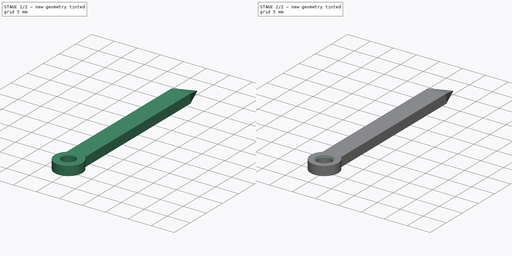
[diagram: build sequence overview — one tinted view per stage of 2, left to right]
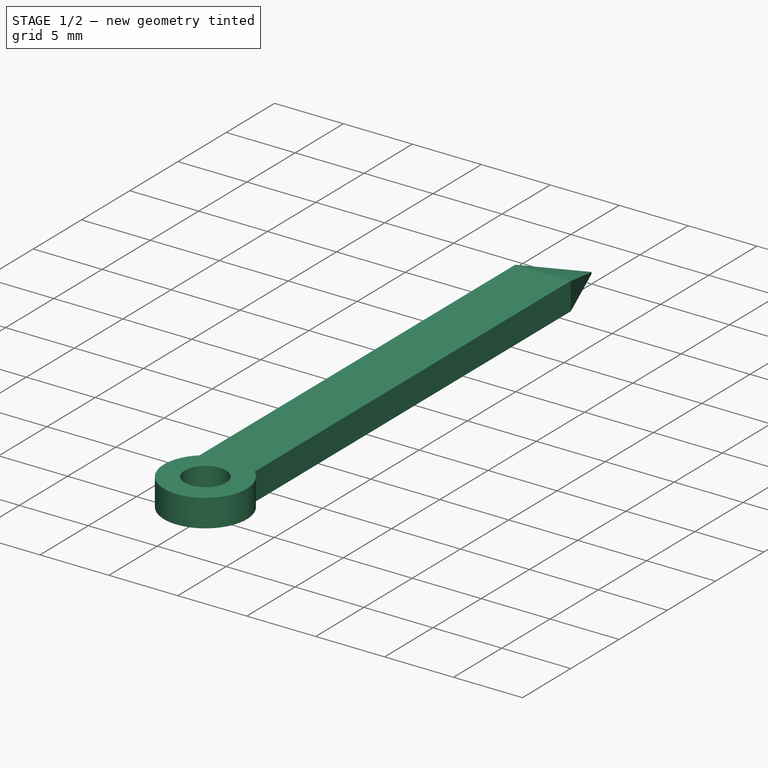
[diagram: stage 1 of 2 — iso view after this stage's code; geometry added in this stage tinted green]
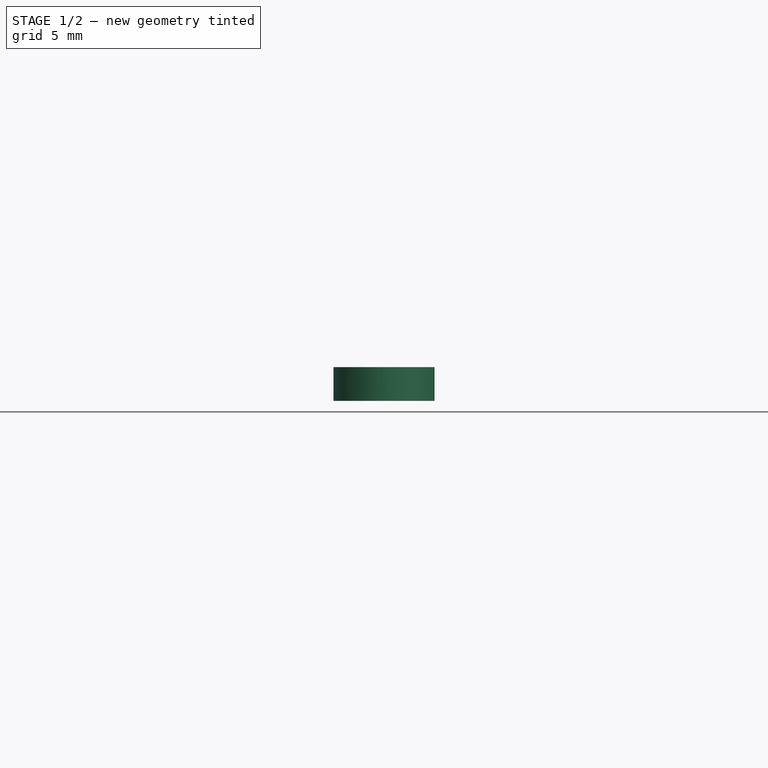
[diagram: stage 1 of 2 — front view after this stage's code; geometry added in this stage tinted green]
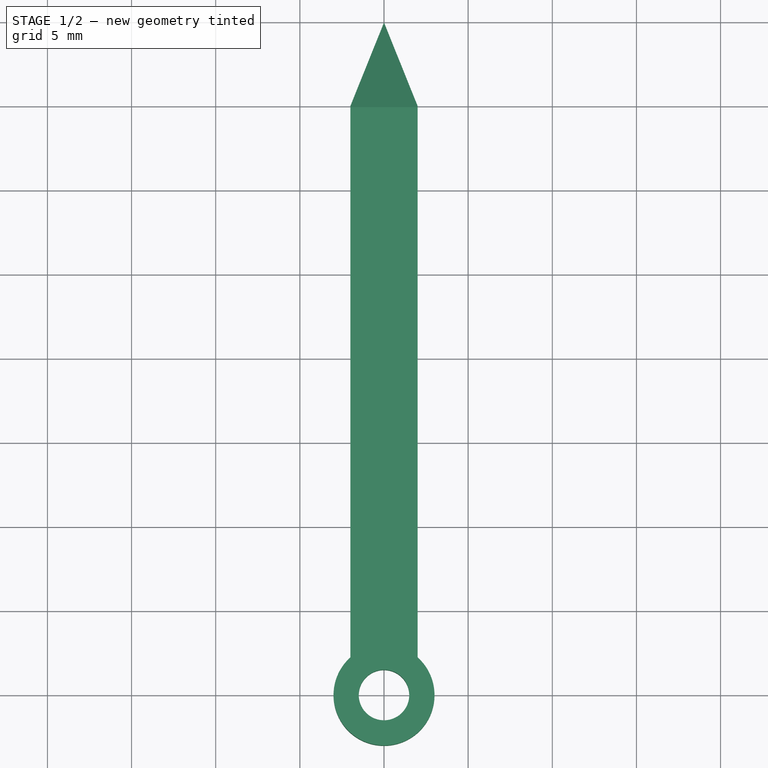
[diagram: stage 1 of 2 — top view after this stage's code; geometry added in this stage tinted green]
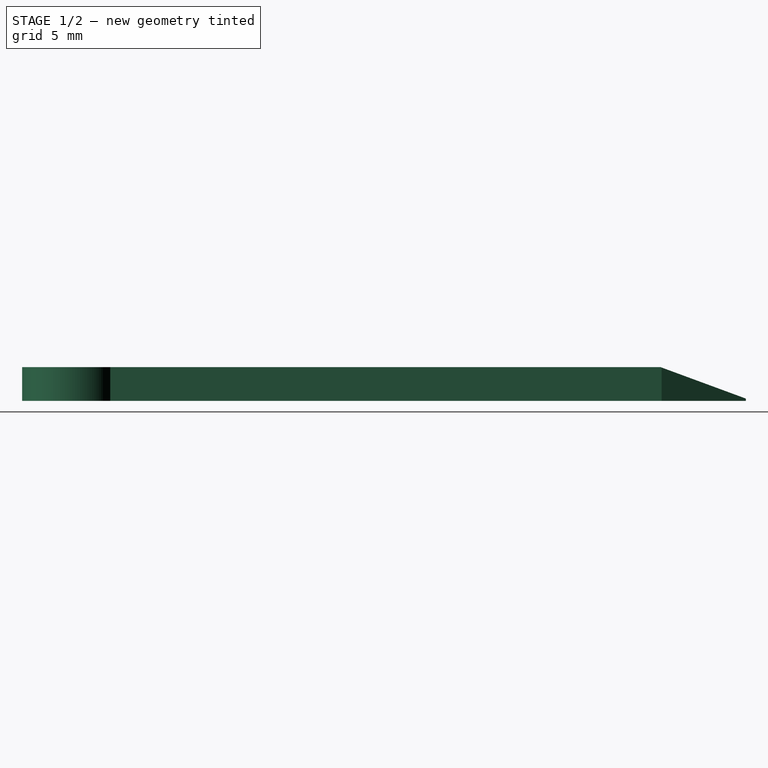
[diagram: stage 1 of 2 — right view after this stage's code; geometry added in this stage tinted green]
FCSTD DOCUMENT  (FreeCAD 0.20R29177 +426 (Git))
Label: needle
License: All rights reserved
LicenseURL: http://en.wikipedia.org/wiki/All_rights_reserved
objects: Sketcher::SketchObject×2, Spreadsheet::Sheet×1, PartDesign::Pad×1, PartDesign::Pocket×1, PartDesign::Fillet×1, PartDesign::Body×1
note: 9 computed .brp shape members not serialized (recipe doc carries the construction recipe); baked Part::Feature solids carry a one-line shape summary decoded from their .brp

FEATURE [Sketcher::SketchObject] Sketch
  FullyConstrained = true
  MapMode = 5
  Support = -> [XY_Plane]
  expr: Constraints[11] = Spreadsheet.length
  expr: Constraints[12] = Spreadsheet.topLen
  expr: Constraints[13] = Spreadsheet.width
  expr: Constraints[1] = Spreadsheet.smallR
  expr: Constraints[2] = Spreadsheet.bottomR
  sketch-geometry (6):
    g0: Circle CenterX=0 CenterY=0 CenterZ=0 NormalX=0 NormalY=0 NormalZ=1 AngleXU=0 Radius=1.5
    g1: ArcOfCircle CenterX=0 CenterY=0 CenterZ=0 NormalX=0 NormalY=0 NormalZ=1 AngleXU=0 Radius=3 StartAngle=2.30052 EndAngle=7.12425
    g2: LineSegment StartX=2 StartY=2.23607 StartZ=0 EndX=2 EndY=35 EndZ=0
    g3: LineSegment StartX=-2 StartY=35 StartZ=0 EndX=-2 EndY=2.23607 EndZ=0
    g4: LineSegment StartX=0 StartY=40 StartZ=0 EndX=-2 EndY=35 EndZ=0
    g5: LineSegment StartX=0 StartY=40 StartZ=0 EndX=2 EndY=35 EndZ=0
  constraints (16):
    c: Coincident(g0,g-1)
    c: Radius(g0) = 1.5
    c: Radius(g1) = 3
    c: Vertical(g2)
    c: Vertical(g3)
    c: Coincident(g1,g2)
    c: Coincident(g1,g3)
    c: Coincident(g5,g4)
    c: Coincident(g3,g4)
    c: Coincident(g2,g5)
    c: PointOnObject(g4,g-2)
    c: DistanceY(g0,g4) = 40
    c: DistanceY(g2,g4) = 5
    c: DistanceX(g3,g2) = 4
    c: Symmetric(g2,g3,g-2)
    c: Coincident(g1,g0)
FEATURE [Spreadsheet::Sheet] Spreadsheet
  cells = A2=smallR; B2(smallR)=1.5; A3=bottomR; B3(bottomR)=3; A4=length; B4(length)=40; A5=width; B5(width)=4; A6=topLen; B6(topLen)=5
FEATURE [PartDesign::Pad] Pad
  Direction = (0,0,1)
  Length = 2
  Length2 = 10
  Profile = -> Sketch
  ReferenceAxis = -> Sketch [N_Axis]
  Type = 0
FEATURE [Sketcher::SketchObject] Sketch001
  FullyConstrained = false
  MapMode = 5
  Placement = pos=(0,0,0) rot=(0.57735,0.57735,0.57735;2.0944rad)
  Support = -> [YZ_Plane]
  sketch-geometry (3):
    g0: LineSegment StartX=40.3648 StartY=0 StartZ=0 EndX=32.1756 EndY=3.01966 EndZ=0
    g1: LineSegment StartX=32.1756 StartY=3.01966 StartZ=0 EndX=42.4468 EndY=4.15318 EndZ=0
    g2: LineSegment StartX=42.4468 StartY=4.15318 StartZ=0 EndX=40.3648 EndY=0 EndZ=0
  constraints (4):
    c: PointOnObject(g0,g-1)
    c: Coincident(g1,g0)
    c: Coincident(g2,g1)
    c: Coincident(g2,g0)
FEATURE [PartDesign::Pocket] Pocket
  BaseFeature = -> Pad
  Direction = (-1,2e-16,-3e-16)
  Length = 5
  Length2 = 5
  Midplane = true
  Profile = -> Sketch001
  ReferenceAxis = -> Sketch001 [N_Axis]
  Type = 0
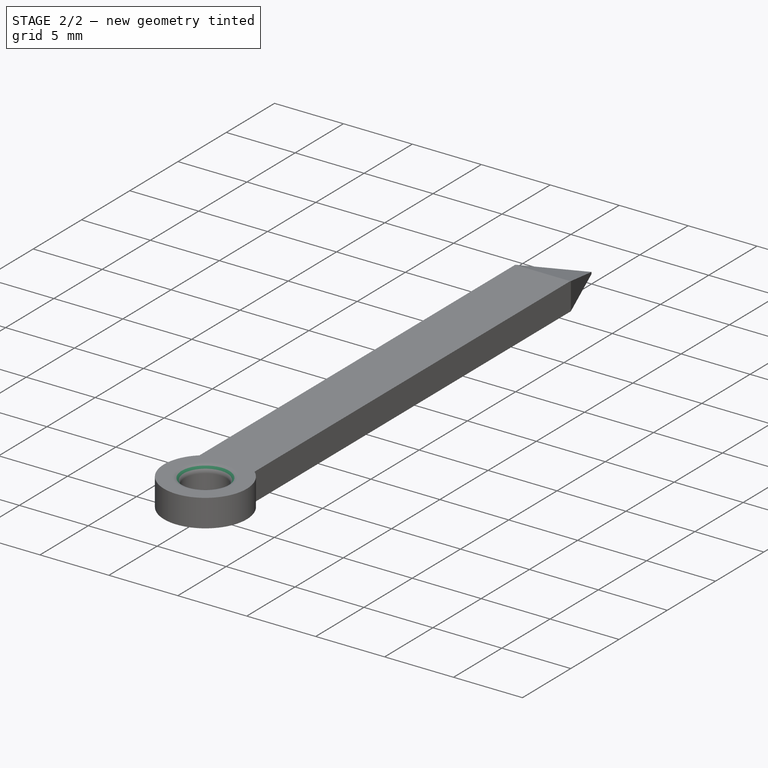
[diagram: stage 2 of 2 — iso view after this stage's code; geometry added in this stage tinted green]
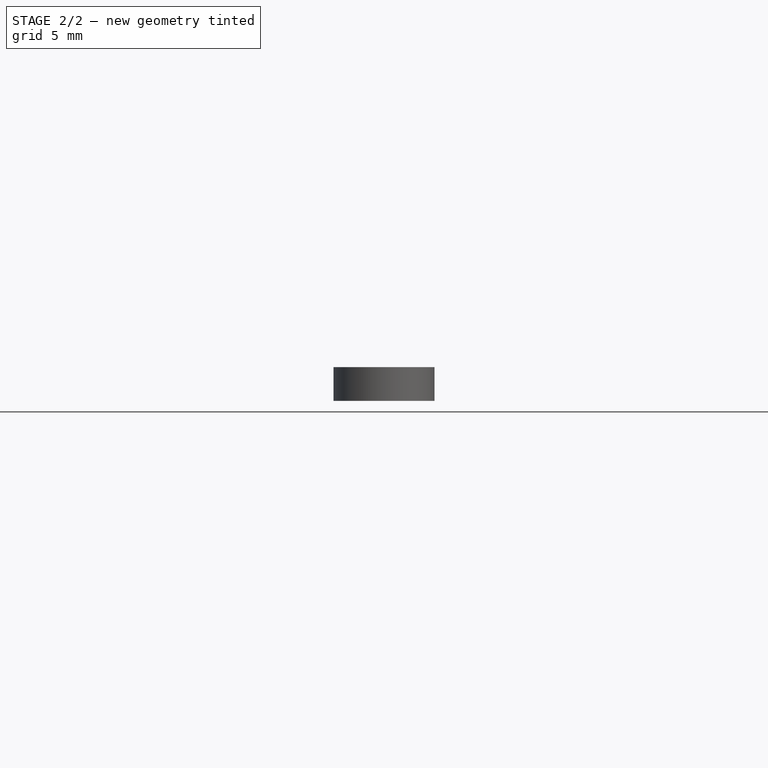
[diagram: stage 2 of 2 — front view after this stage's code; geometry added in this stage tinted green]
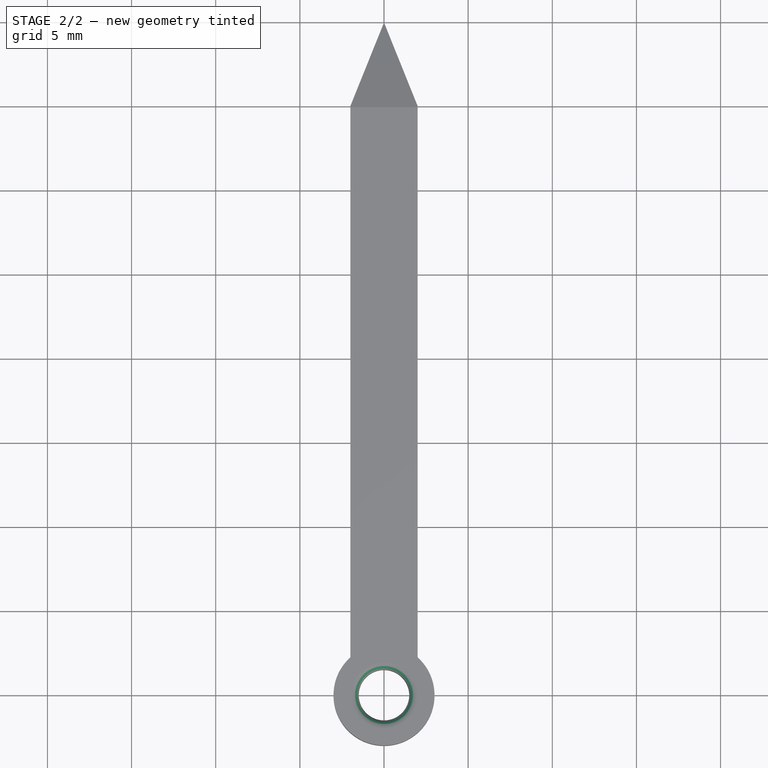
[diagram: stage 2 of 2 — top view after this stage's code; geometry added in this stage tinted green]
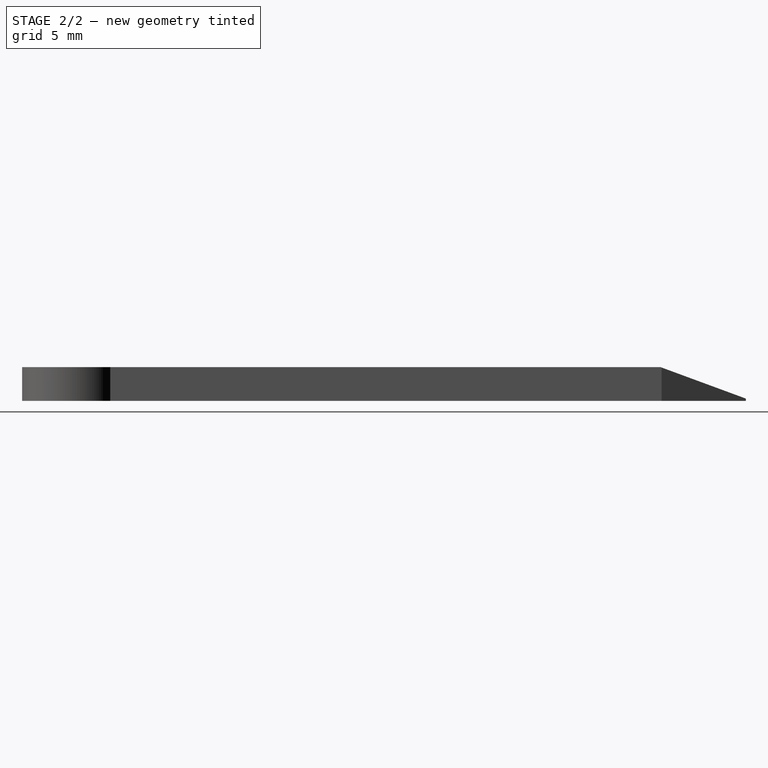
[diagram: stage 2 of 2 — right view after this stage's code; geometry added in this stage tinted green]
FEATURE [PartDesign::Fillet] Fillet
  Base = -> Pocket [Edge17,Edge15]
  BaseFeature = -> Pocket
  Radius = 0.5
  SupportTransform = false
  UseAllEdges = false
FEATURE [PartDesign::Body] Body
  Group = -> [Sketch,Pad,Sketch001,Pocket,Fillet]
  Origin = -> Origin
  Tip = -> Fillet
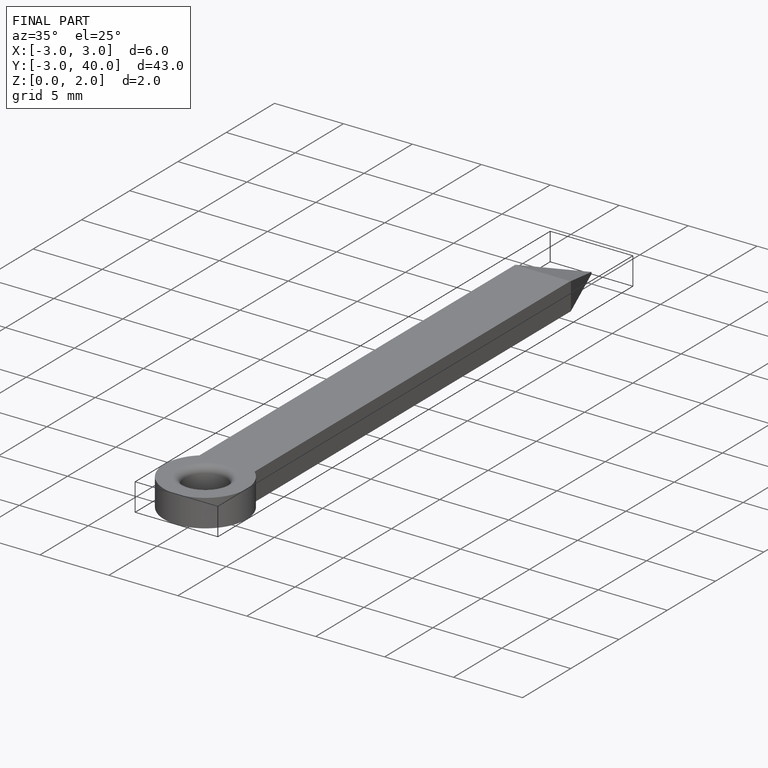
[diagram: finished part — iso view with bounding-box wireframe]
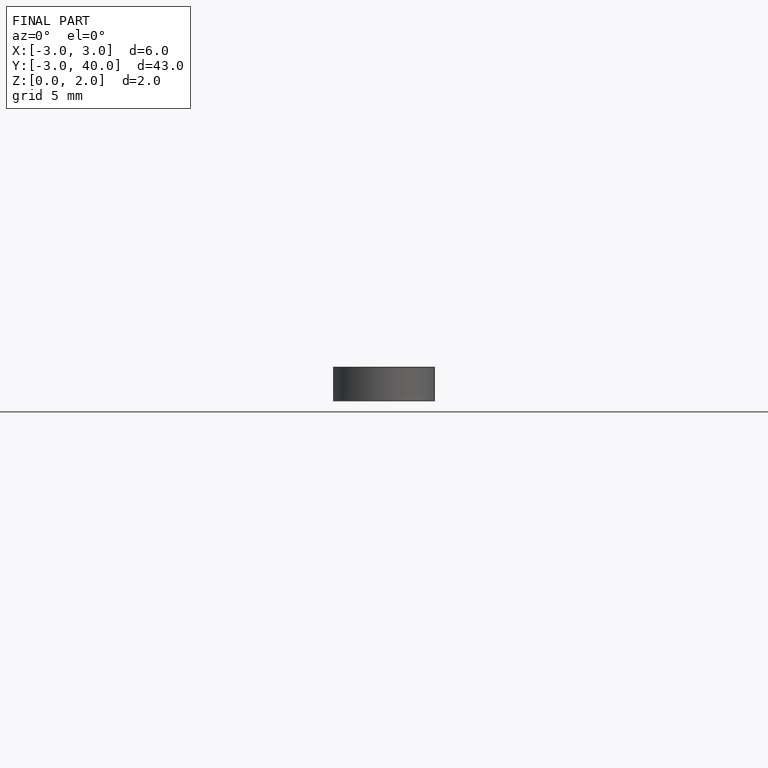
[diagram: finished part — front view with bounding-box wireframe]
